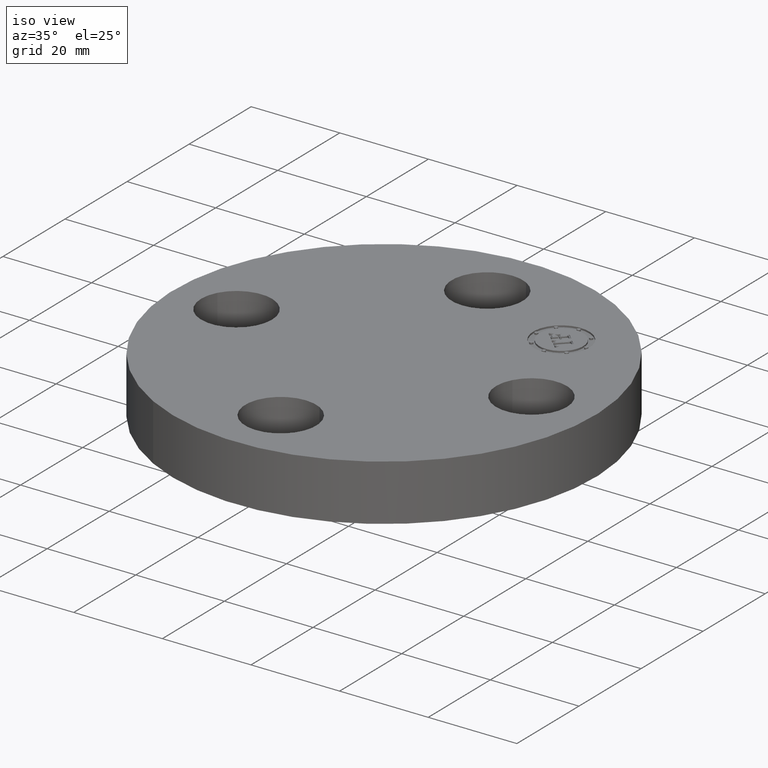
[diagram: clean part render]
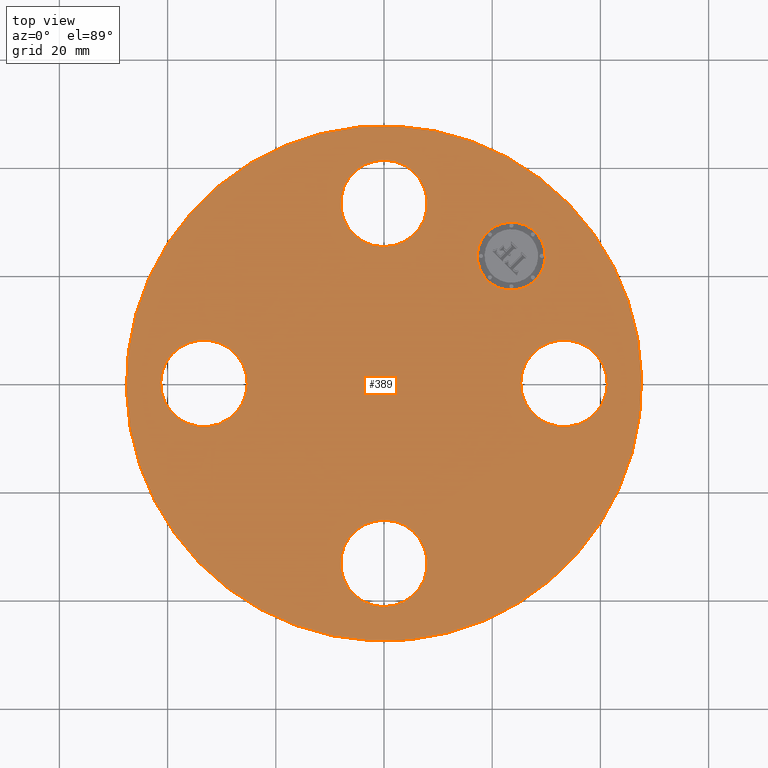
[diagram: tour spotlight — one face highlighted and labeled with its STEP entity id]
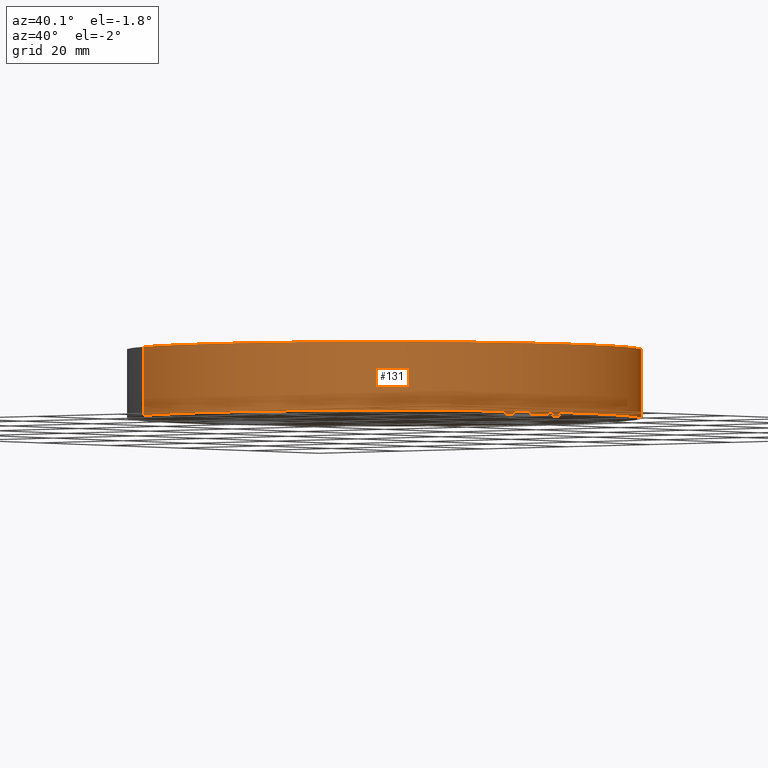
[diagram: tour spotlight — one face highlighted and labeled with its STEP entity id]
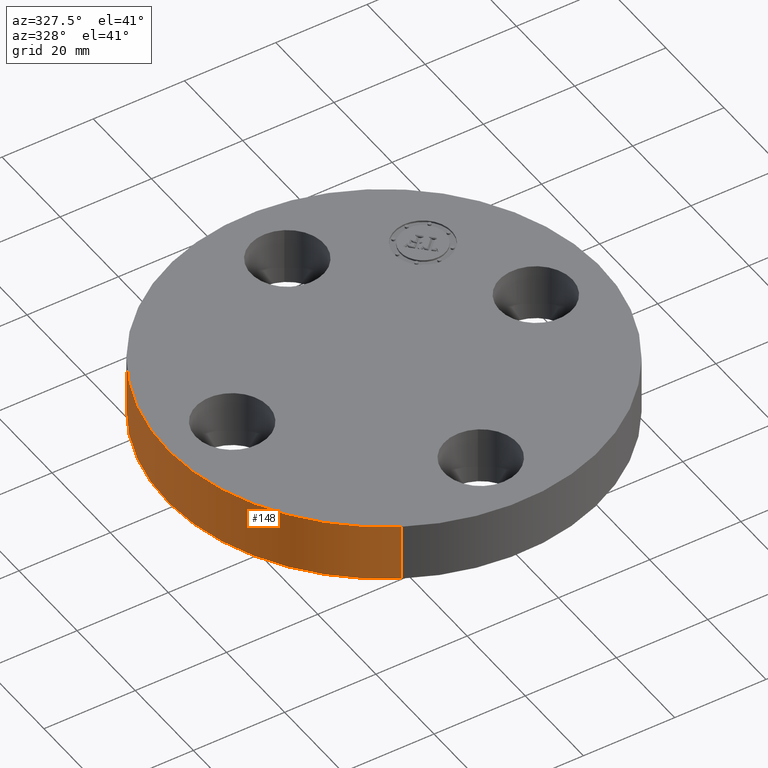
[diagram: tour spotlight — one face highlighted and labeled with its STEP entity id]
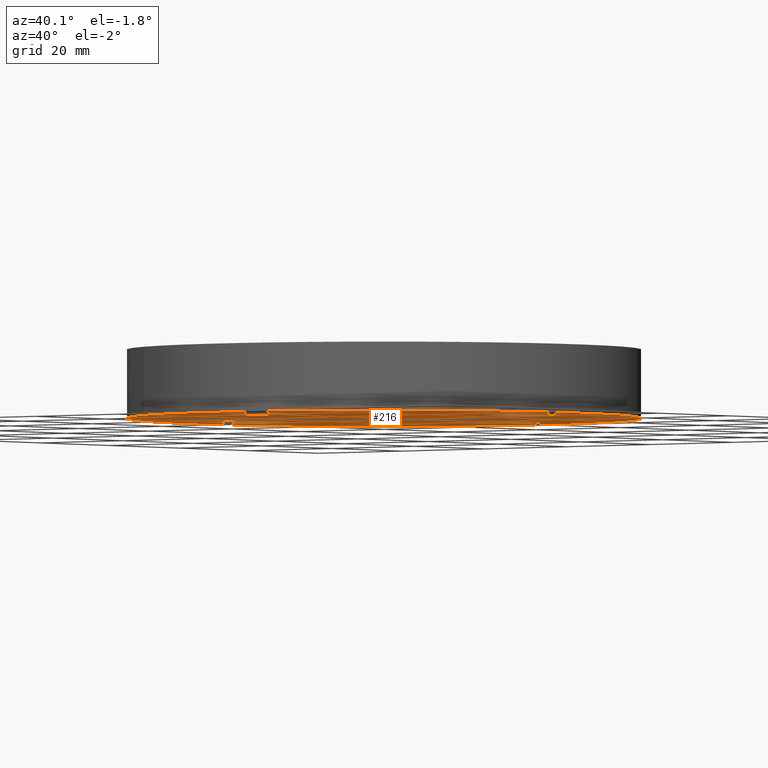
[diagram: tour spotlight — one face highlighted and labeled with its STEP entity id]
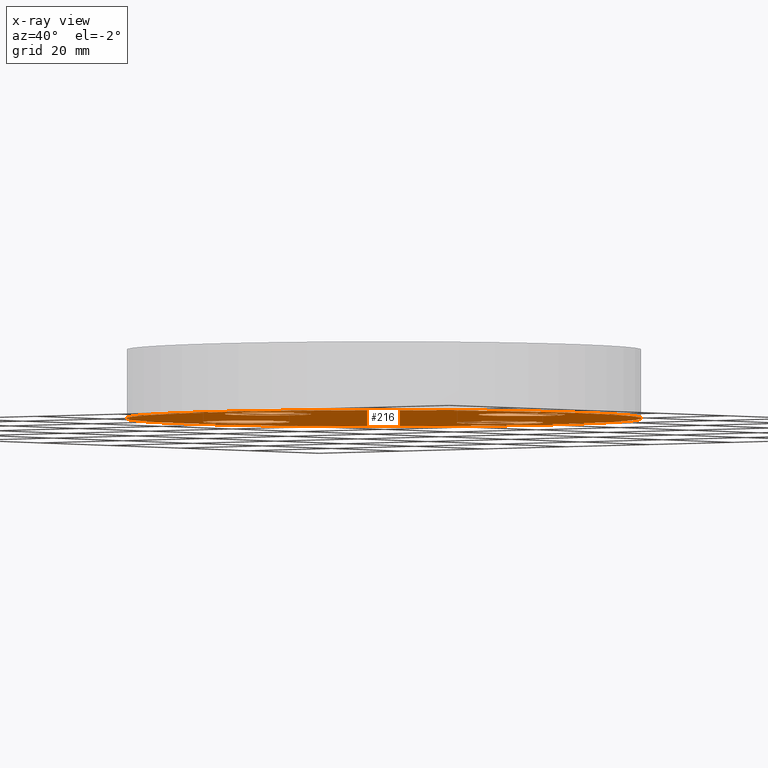
[diagram: x-ray of the same camera — body ghosted, this tour face saturated]
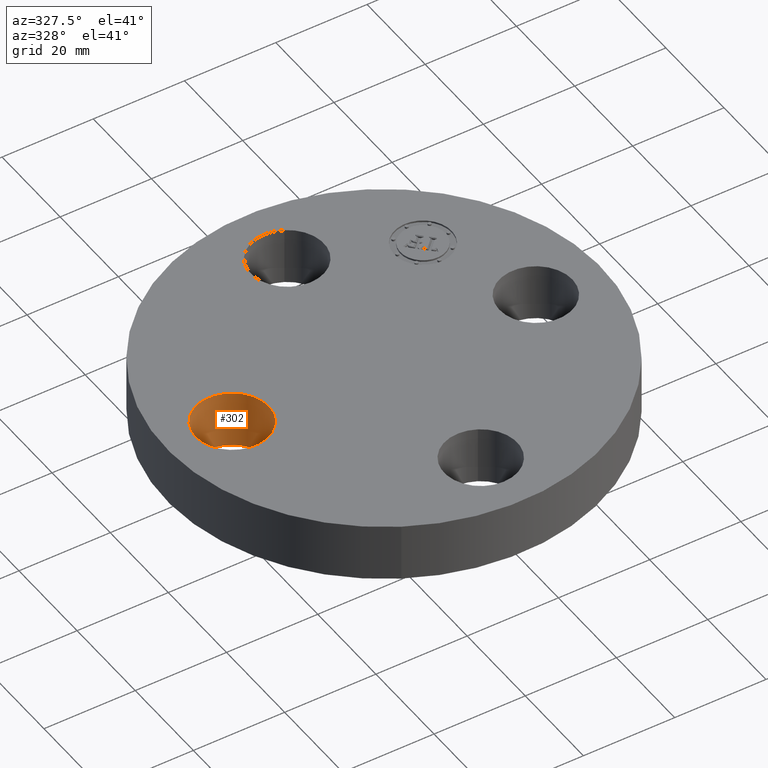
[diagram: tour spotlight — one face highlighted and labeled with its STEP entity id]
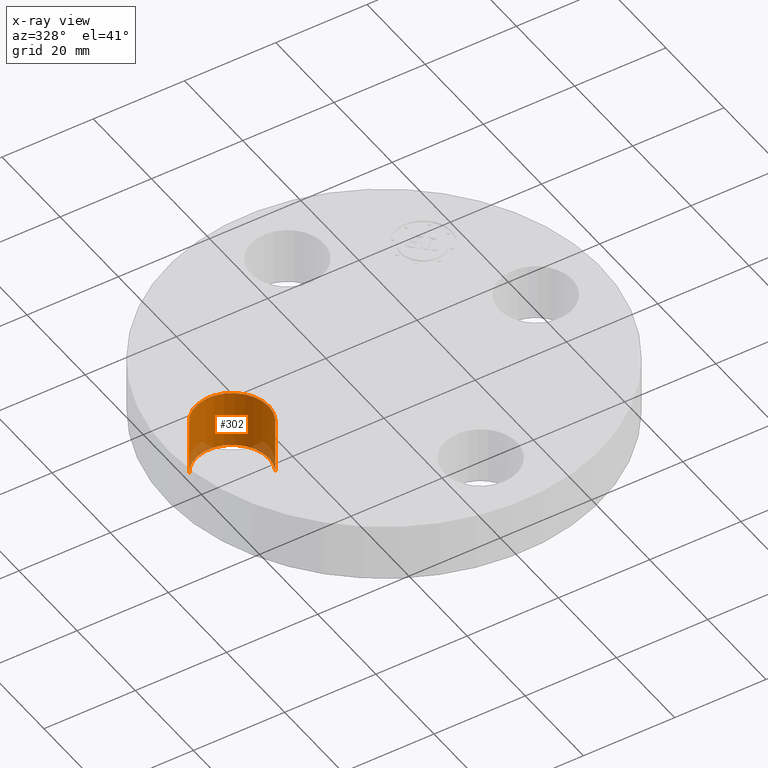
[diagram: x-ray of the same camera — body ghosted, this tour face saturated]
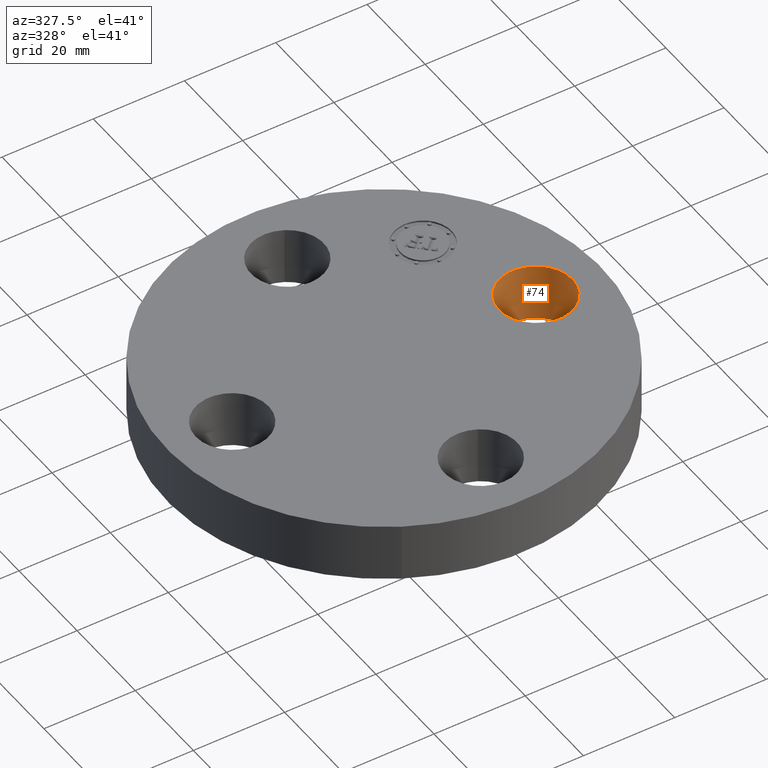
[diagram: tour spotlight — one face highlighted and labeled with its STEP entity id]
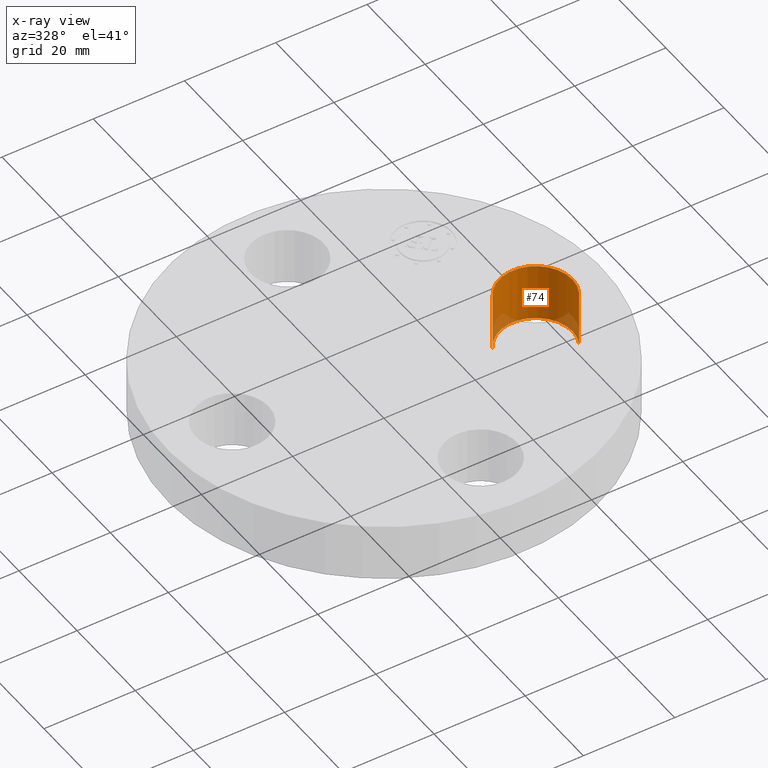
[diagram: x-ray of the same camera — body ghosted, this tour face saturated]
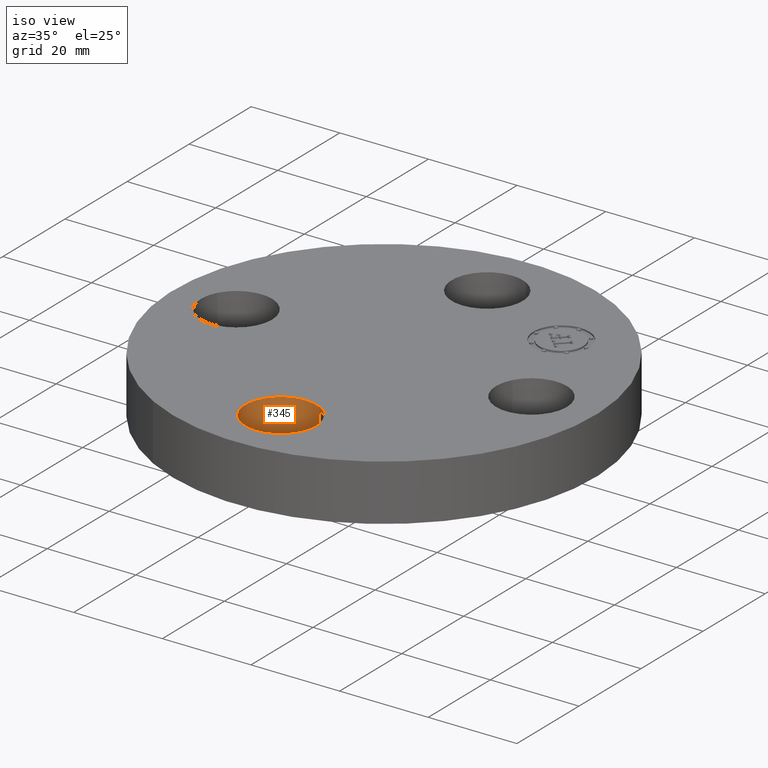
[diagram: tour spotlight — one face highlighted and labeled with its STEP entity id]
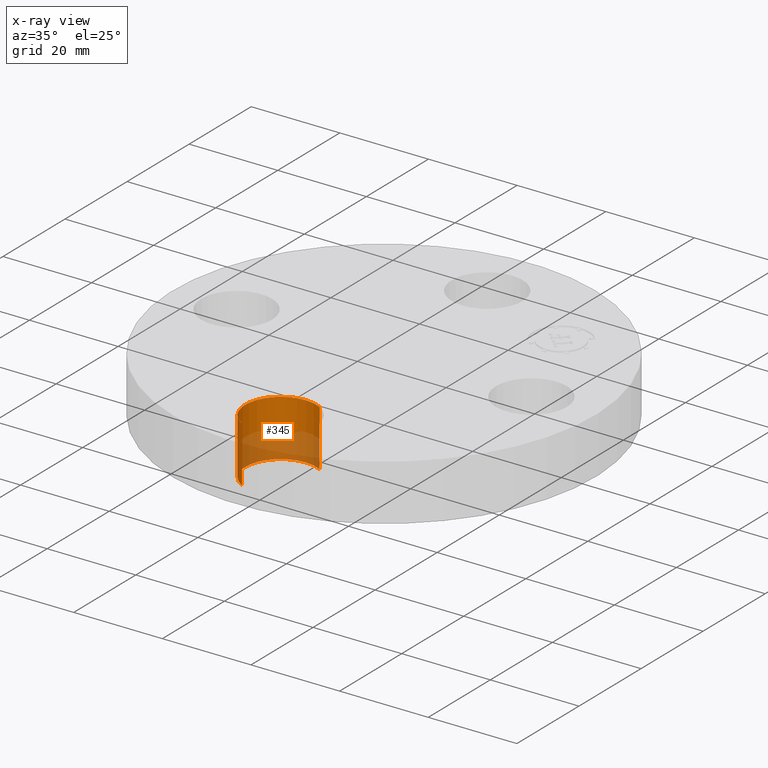
[diagram: x-ray of the same camera — body ghosted, this tour face saturated]
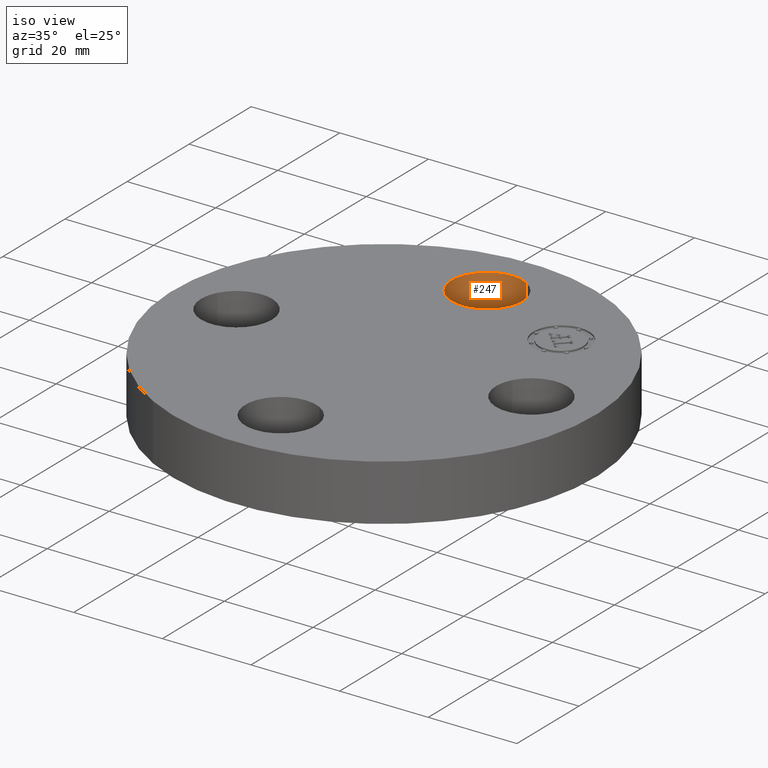
[diagram: tour spotlight — one face highlighted and labeled with its STEP entity id]
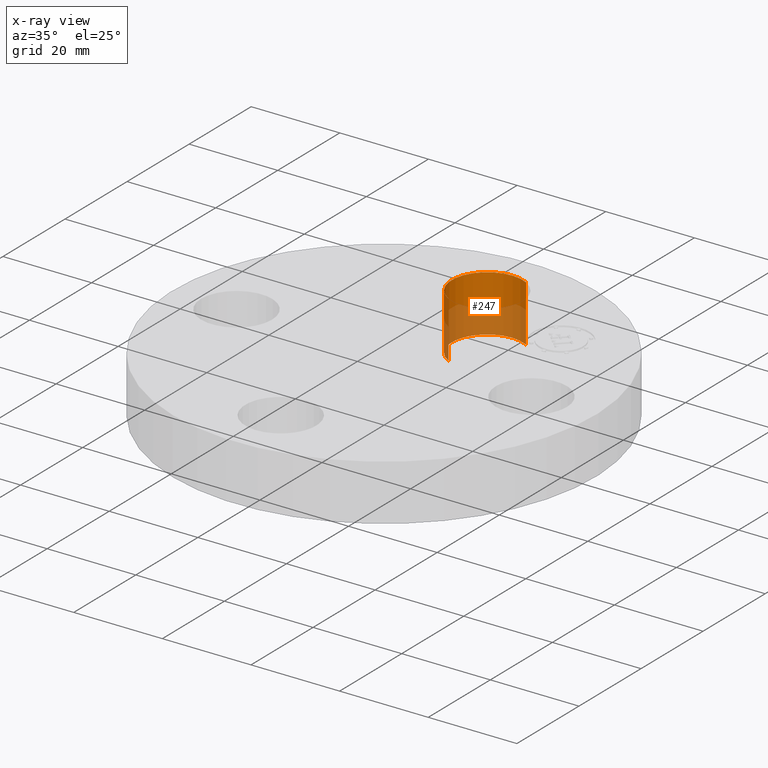
[diagram: x-ray of the same camera — body ghosted, this tour face saturated]
A machine part: a face-by-face anatomy tour. The part has 397 B-rep faces; the first image is the clean iso view, then the 8 largest visible faces are spotlighted one at a time (largest first), each with its STEP entity span.

Face 1 — top view, entity #389. In plain terms, the highlighted planar face has unit normal (0, 0, -1).
Definition (entity closure, byte-faithful):
#65=AXIS2_PLACEMENT_3D('Circle Axis2P3D',#63,#64,$) ;
#82=AXIS2_PLACEMENT_3D('Circle Axis2P3D',#80,#81,$) ;
#115=AXIS2_PLACEMENT_3D('Circle Axis2P3D',#113,#114,$) ;
#139=AXIS2_PLACEMENT_3D('Circle Axis2P3D',#137,#138,$) ;
#238=AXIS2_PLACEMENT_3D('Circle Axis2P3D',#236,#237,$) ;
#250=AXIS2_PLACEMENT_3D('Circle Axis2P3D',#248,#249,$) ;
#281=AXIS2_PLACEMENT_3D('Circle Axis2P3D',#279,#280,$) ;
#293=AXIS2_PLACEMENT_3D('Circle Axis2P3D',#291,#292,$) ;
#324=AXIS2_PLACEMENT_3D('Circle Axis2P3D',#322,#323,$) ;
#336=AXIS2_PLACEMENT_3D('Circle Axis2P3D',#334,#335,$) ;
#349=AXIS2_PLACEMENT_3D('Plane Axis2P3D',#346,#347,#348) ;
#373=AXIS2_PLACEMENT_3D('Circle Axis2P3D',#371,#372,$) ;
#382=AXIS2_PLACEMENT_3D('Circle Axis2P3D',#380,#381,$) ;
#46=CARTESIAN_POINT('Vertex',(1.03356149301,0.151019044661,0.500000000002)) ;
#60=CARTESIAN_POINT('Vertex',(1.586438507,-0.151019044661,0.500000000002)) ;
#63=CARTESIAN_POINT('Axis2P3D Location',(1.31000000001,0.,0.500000000002)) ;
#80=CARTESIAN_POINT('Axis2P3D Location',(1.31000000001,0.,0.500000000002)) ;
#110=CARTESIAN_POINT('Vertex',(0.898922884886,1.64546730355,0.500000000002)) ;
#113=CARTESIAN_POINT('Axis2P3D Location',(0.,0.,0.500000000002)) ;
#117=CARTESIAN_POINT('Vertex',(-0.898922884886,-1.64546730355,0.500000000002)) ;
#137=CARTESIAN_POINT('Axis2P3D Location',(0.,0.,0.500000000002)) ;
#226=CARTESIAN_POINT('Vertex',(-0.151019044661,1.03356149301,0.500000000002)) ;
#233=CARTESIAN_POINT('Vertex',(0.151019044661,1.586438507,0.500000000002)) ;
#236=CARTESIAN_POINT('Axis2P3D Location',(-2.40643096033E-016,1.31000000001,0.500000000002)) ;
#248=CARTESIAN_POINT('Axis2P3D Location',(-2.40643096033E-016,1.31000000001,0.500000000002)) ;
#269=CARTESIAN_POINT('Vertex',(-1.03356149301,-0.151019044661,0.500000000002)) ;
#276=CARTESIAN_POINT('Vertex',(-1.586438507,0.151019044661,0.500000000002)) ;
#279=CARTESIAN_POINT('Axis2P3D Location',(-1.31000000001,-1.60428730689E-016,0.500000000002)) ;
#291=CARTESIAN_POINT('Axis2P3D Location',(-1.31000000001,-1.60428730689E-016,0.500000000002)) ;
#312=CARTESIAN_POINT('Vertex',(0.151019044661,-1.03356149301,0.500000000002)) ;
#319=CARTESIAN_POINT('Vertex',(-0.151019044661,-1.586438507,0.500000000002)) ;
#322=CARTESIAN_POINT('Axis2P3D Location',(-1.99526869207E-016,-1.31000000001,0.500000000002)) ;
#334=CARTESIAN_POINT('Axis2P3D Location',(-1.99526869207E-016,-1.31000000001,0.500000000002)) ;
#346=CARTESIAN_POINT('Axis2P3D Location',(0.,1.87500000001,0.500000000002)) ;
#371=CARTESIAN_POINT('Axis2P3D Location',(0.926309883358,0.926309883358,0.500000000002)) ;
#375=CARTESIAN_POINT('Vertex',(0.751300955014,1.1013188117,0.500000000002)) ;
#377=CARTESIAN_POINT('Vertex',(1.1013188117,0.751300955014,0.500000000002)) ;
#380=CARTESIAN_POINT('Axis2P3D Location',(0.926309883358,0.926309883358,0.500000000002)) ;
#64=DIRECTION('Axis2P3D Direction',(0.,-0.,-0.0393700787402)) ;
#81=DIRECTION('Axis2P3D Direction',(0.,-0.,-0.0393700787402)) ;
#114=DIRECTION('Axis2P3D Direction',(0.,0.,-0.0393700787402)) ;
#138=DIRECTION('Axis2P3D Direction',(0.,0.,-0.0393700787402)) ;
#237=DIRECTION('Axis2P3D Direction',(0.,0.,-0.0393700787402)) ;
#249=DIRECTION('Axis2P3D Direction',(0.,0.,-0.0393700787402)) ;
#280=DIRECTION('Axis2P3D Direction',(-0.,0.,-0.0393700787402)) ;
#292=DIRECTION('Axis2P3D Direction',(-0.,0.,-0.0393700787402)) ;
#323=DIRECTION('Axis2P3D Direction',(0.,-0.,-0.0393700787402)) ;
#335=DIRECTION('Axis2P3D Direction',(0.,-0.,-0.0393700787402)) ;
#347=DIRECTION('Axis2P3D Direction',(0.,0.,-0.0393700787402)) ;
#348=DIRECTION('Axis2P3D XDirection',(0.0393700787402,0.,0.)) ;
#372=DIRECTION('Axis2P3D Direction',(0.,0.,-0.0393700787402)) ;
#381=DIRECTION('Axis2P3D Direction',(0.,0.,-0.0393700787402)) ;
#352=ORIENTED_EDGE('',*,*,#119,.F.) ;
#353=ORIENTED_EDGE('',*,*,#141,.F.) ;
#356=ORIENTED_EDGE('',*,*,#67,.T.) ;
#357=ORIENTED_EDGE('',*,*,#84,.T.) ;
#360=ORIENTED_EDGE('',*,*,#338,.T.) ;
#361=ORIENTED_EDGE('',*,*,#326,.T.) ;
#364=ORIENTED_EDGE('',*,*,#295,.T.) ;
#365=ORIENTED_EDGE('',*,*,#283,.T.) ;
#368=ORIENTED_EDGE('',*,*,#252,.T.) ;
#369=ORIENTED_EDGE('',*,*,#240,.T.) ;
#386=ORIENTED_EDGE('',*,*,#379,.T.) ;
#387=ORIENTED_EDGE('',*,*,#384,.T.) ;
#358=FACE_BOUND('',#355,.T.) ;
#362=FACE_BOUND('',#359,.T.) ;
#366=FACE_BOUND('',#363,.T.) ;
#370=FACE_BOUND('',#367,.T.) ;
#388=FACE_BOUND('',#385,.T.) ;
#389=ADVANCED_FACE('PartBody',(#354,#358,#362,#366,#370,#388),#350,.F.) ;
#66=CIRCLE('generated circle',#65,0.315000000001) ;
#83=CIRCLE('generated circle',#82,0.315000000001) ;
#116=CIRCLE('generated circle',#115,1.87500000001) ;
#140=CIRCLE('generated circle',#139,1.87500000001) ;
#239=CIRCLE('generated circle',#238,0.315000000001) ;
#251=CIRCLE('generated circle',#250,0.315000000001) ;
#282=CIRCLE('generated circle',#281,0.315000000001) ;
#294=CIRCLE('generated circle',#293,0.315000000001) ;
#325=CIRCLE('generated circle',#324,0.315000000001) ;
#337=CIRCLE('generated circle',#336,0.315000000001) ;
#374=CIRCLE('generated circle',#373,0.247500000001) ;
#383=CIRCLE('generated circle',#382,0.247500000001) ;
#67=EDGE_CURVE('',#47,#61,#66,.T.) ;
#84=EDGE_CURVE('',#61,#47,#83,.T.) ;
#119=EDGE_CURVE('',#111,#118,#116,.T.) ;
#141=EDGE_CURVE('',#118,#111,#140,.T.) ;
#240=EDGE_CURVE('',#227,#234,#239,.T.) ;
#252=EDGE_CURVE('',#234,#227,#251,.T.) ;
#283=EDGE_CURVE('',#270,#277,#282,.T.) ;
#295=EDGE_CURVE('',#277,#270,#294,.T.) ;
#326=EDGE_CURVE('',#313,#320,#325,.T.) ;
#338=EDGE_CURVE('',#320,#313,#337,.T.) ;
#379=EDGE_CURVE('',#376,#378,#374,.T.) ;
#384=EDGE_CURVE('',#378,#376,#383,.T.) ;
#351=EDGE_LOOP('',(#352,#353)) ;
#355=EDGE_LOOP('',(#356,#357)) ;
#359=EDGE_LOOP('',(#360,#361)) ;
#363=EDGE_LOOP('',(#364,#365)) ;
#367=EDGE_LOOP('',(#368,#369)) ;
#385=EDGE_LOOP('',(#386,#387)) ;
#354=FACE_OUTER_BOUND('',#351,.T.) ;
#350=PLANE('',#349) ;
#47=VERTEX_POINT('',#46) ;
#61=VERTEX_POINT('',#60) ;
#111=VERTEX_POINT('',#110) ;
#118=VERTEX_POINT('',#117) ;
#227=VERTEX_POINT('',#226) ;
#234=VERTEX_POINT('',#233) ;
#270=VERTEX_POINT('',#269) ;
#277=VERTEX_POINT('',#276) ;
#313=VERTEX_POINT('',#312) ;
#320=VERTEX_POINT('',#319) ;
#376=VERTEX_POINT('',#375) ;
#378=VERTEX_POINT('',#377) ;

Face 2 — auxiliary view, entity #131. In plain terms, the highlighted cylindrical surface (partial cylindrical patch) has radius 47.625 mm, axis along (0, 0, -1).
Definition (entity closure, byte-faithful):
#95=AXIS2_PLACEMENT_3D('Cylinder Axis2P3D',#92,#93,#94) ;
#99=AXIS2_PLACEMENT_3D('Circle Axis2P3D',#97,#98,$) ;
#115=AXIS2_PLACEMENT_3D('Circle Axis2P3D',#113,#114,$) ;
#92=CARTESIAN_POINT('Axis2P3D Location',(0.,0.,0.250000000001)) ;
#97=CARTESIAN_POINT('Axis2P3D Location',(0.,0.,1.04902962957E-016)) ;
#101=CARTESIAN_POINT('Vertex',(0.898922884886,1.64546730355,6.99353086378E-017)) ;
#103=CARTESIAN_POINT('Vertex',(-0.898922884886,-1.64546730355,6.99353086378E-017)) ;
#106=CARTESIAN_POINT('Line Origine',(0.898922884886,1.64546730355,0.250000000001)) ;
#110=CARTESIAN_POINT('Vertex',(0.898922884886,1.64546730355,0.500000000002)) ;
#113=CARTESIAN_POINT('Axis2P3D Location',(0.,0.,0.500000000002)) ;
#117=CARTESIAN_POINT('Vertex',(-0.898922884886,-1.64546730355,0.500000000002)) ;
#120=CARTESIAN_POINT('Line Origine',(-0.898922884886,-1.64546730355,0.250000000001)) ;
#93=DIRECTION('Axis2P3D Direction',(0.,0.,-0.0393700787402)) ;
#94=DIRECTION('Axis2P3D XDirection',(-0.0188750212049,-0.0345504945626,0.)) ;
#98=DIRECTION('Axis2P3D Direction',(0.,0.,-0.0393700787402)) ;
#107=DIRECTION('Vector Direction',(0.,0.,-0.0393700787402)) ;
#114=DIRECTION('Axis2P3D Direction',(0.,0.,-0.0393700787402)) ;
#121=DIRECTION('Vector Direction',(0.,0.,-0.0393700787402)) ;
#108=VECTOR('Line Direction',#107,0.0393700787402) ;
#122=VECTOR('Line Direction',#121,0.0393700787402) ;
#126=ORIENTED_EDGE('',*,*,#105,.F.) ;
#127=ORIENTED_EDGE('',*,*,#112,.T.) ;
#128=ORIENTED_EDGE('',*,*,#119,.T.) ;
#129=ORIENTED_EDGE('',*,*,#124,.F.) ;
#131=ADVANCED_FACE('PartBody',(#130),#96,.T.) ;
#100=CIRCLE('generated circle',#99,1.87500000001) ;
#116=CIRCLE('generated circle',#115,1.87500000001) ;
#96=CYLINDRICAL_SURFACE('generated cylinder',#95,1.87500000001) ;
#105=EDGE_CURVE('',#102,#104,#100,.T.) ;
#112=EDGE_CURVE('',#102,#111,#109,.F.) ;
#119=EDGE_CURVE('',#111,#118,#116,.T.) ;
#124=EDGE_CURVE('',#104,#118,#123,.F.) ;
#125=EDGE_LOOP('',(#126,#127,#128,#129)) ;
#130=FACE_OUTER_BOUND('',#125,.T.) ;
#109=LINE('Line',#106,#108) ;
#123=LINE('Line',#120,#122) ;
#102=VERTEX_POINT('',#101) ;
#104=VERTEX_POINT('',#103) ;
#111=VERTEX_POINT('',#110) ;
#118=VERTEX_POINT('',#117) ;

Face 3 — auxiliary view, entity #148. In plain terms, the highlighted cylindrical surface (partial cylindrical patch) has radius 47.625 mm, axis along (0, 0, -1).
Definition (entity closure, byte-faithful):
#95=AXIS2_PLACEMENT_3D('Cylinder Axis2P3D',#92,#93,#94) ;
#134=AXIS2_PLACEMENT_3D('Circle Axis2P3D',#132,#133,$) ;
#139=AXIS2_PLACEMENT_3D('Circle Axis2P3D',#137,#138,$) ;
#92=CARTESIAN_POINT('Axis2P3D Location',(0.,0.,0.250000000001)) ;
#101=CARTESIAN_POINT('Vertex',(0.898922884886,1.64546730355,6.99353086378E-017)) ;
#103=CARTESIAN_POINT('Vertex',(-0.898922884886,-1.64546730355,6.99353086378E-017)) ;
#106=CARTESIAN_POINT('Line Origine',(0.898922884886,1.64546730355,0.250000000001)) ;
#110=CARTESIAN_POINT('Vertex',(0.898922884886,1.64546730355,0.500000000002)) ;
#117=CARTESIAN_POINT('Vertex',(-0.898922884886,-1.64546730355,0.500000000002)) ;
#120=CARTESIAN_POINT('Line Origine',(-0.898922884886,-1.64546730355,0.250000000001)) ;
#132=CARTESIAN_POINT('Axis2P3D Location',(0.,0.,1.04902962957E-016)) ;
#137=CARTESIAN_POINT('Axis2P3D Location',(0.,0.,0.500000000002)) ;
#93=DIRECTION('Axis2P3D Direction',(0.,0.,-0.0393700787402)) ;
#94=DIRECTION('Axis2P3D XDirection',(-0.0188750212049,-0.0345504945626,0.)) ;
#107=DIRECTION('Vector Direction',(0.,0.,-0.0393700787402)) ;
#121=DIRECTION('Vector Direction',(0.,0.,-0.0393700787402)) ;
#133=DIRECTION('Axis2P3D Direction',(0.,0.,-0.0393700787402)) ;
#138=DIRECTION('Axis2P3D Direction',(0.,0.,-0.0393700787402)) ;
#108=VECTOR('Line Direction',#107,0.0393700787402) ;
#122=VECTOR('Line Direction',#121,0.0393700787402) ;
#143=ORIENTED_EDGE('',*,*,#136,.F.) ;
#144=ORIENTED_EDGE('',*,*,#124,.T.) ;
#145=ORIENTED_EDGE('',*,*,#141,.T.) ;
#146=ORIENTED_EDGE('',*,*,#112,.F.) ;
#148=ADVANCED_FACE('PartBody',(#147),#96,.T.) ;
#135=CIRCLE('generated circle',#134,1.87500000001) ;
#140=CIRCLE('generated circle',#139,1.87500000001) ;
#96=CYLINDRICAL_SURFACE('generated cylinder',#95,1.87500000001) ;
#112=EDGE_CURVE('',#102,#111,#109,.F.) ;
#124=EDGE_CURVE('',#104,#118,#123,.F.) ;
#136=EDGE_CURVE('',#104,#102,#135,.T.) ;
#141=EDGE_CURVE('',#118,#111,#140,.T.) ;
#142=EDGE_LOOP('',(#143,#144,#145,#146)) ;
#147=FACE_OUTER_BOUND('',#142,.T.) ;
#109=LINE('Line',#106,#108) ;
#123=LINE('Line',#120,#122) ;
#102=VERTEX_POINT('',#101) ;
#104=VERTEX_POINT('',#103) ;
#111=VERTEX_POINT('',#110) ;
#118=VERTEX_POINT('',#117) ;

Face 4 — auxiliary view, entity #216. An x-ray twin of the same camera follows (body ghosted, this face saturated) — the face is partly hidden behind the body. In plain terms, the highlighted planar face has unit normal (0, 0, -1).
Definition (entity closure, byte-faithful):
#51=AXIS2_PLACEMENT_3D('Circle Axis2P3D',#49,#50,$) ;
#77=AXIS2_PLACEMENT_3D('Circle Axis2P3D',#75,#76,$) ;
#99=AXIS2_PLACEMENT_3D('Circle Axis2P3D',#97,#98,$) ;
#134=AXIS2_PLACEMENT_3D('Circle Axis2P3D',#132,#133,$) ;
#152=AXIS2_PLACEMENT_3D('Plane Axis2P3D',#149,#150,#151) ;
#164=AXIS2_PLACEMENT_3D('Circle Axis2P3D',#162,#163,$) ;
#173=AXIS2_PLACEMENT_3D('Circle Axis2P3D',#171,#172,$) ;
#182=AXIS2_PLACEMENT_3D('Circle Axis2P3D',#180,#181,$) ;
#191=AXIS2_PLACEMENT_3D('Circle Axis2P3D',#189,#190,$) ;
#200=AXIS2_PLACEMENT_3D('Circle Axis2P3D',#198,#199,$) ;
#209=AXIS2_PLACEMENT_3D('Circle Axis2P3D',#207,#208,$) ;
#44=CARTESIAN_POINT('Vertex',(1.03356149301,0.151019044661,0.)) ;
#49=CARTESIAN_POINT('Axis2P3D Location',(1.31000000001,0.,0.)) ;
#53=CARTESIAN_POINT('Vertex',(1.586438507,-0.151019044661,0.)) ;
#75=CARTESIAN_POINT('Axis2P3D Location',(1.31000000001,0.,0.)) ;
#97=CARTESIAN_POINT('Axis2P3D Location',(0.,0.,1.04902962957E-016)) ;
#101=CARTESIAN_POINT('Vertex',(0.898922884886,1.64546730355,6.99353086378E-017)) ;
#103=CARTESIAN_POINT('Vertex',(-0.898922884886,-1.64546730355,6.99353086378E-017)) ;
#132=CARTESIAN_POINT('Axis2P3D Location',(0.,0.,1.04902962957E-016)) ;
#149=CARTESIAN_POINT('Axis2P3D Location',(0.,0.,0.)) ;
#162=CARTESIAN_POINT('Axis2P3D Location',(-1.04902962957E-016,-1.31000000001,0.)) ;
#166=CARTESIAN_POINT('Vertex',(0.151019044661,-1.03356149301,0.)) ;
#168=CARTESIAN_POINT('Vertex',(-0.151019044661,-1.586438507,0.)) ;
#171=CARTESIAN_POINT('Axis2P3D Location',(-1.74838271595E-016,-1.31000000001,0.)) ;
#180=CARTESIAN_POINT('Axis2P3D Location',(-1.31000000001,-1.74838271595E-016,0.)) ;
#184=CARTESIAN_POINT('Vertex',(-1.03356149301,-0.151019044661,0.)) ;
#186=CARTESIAN_POINT('Vertex',(-1.586438507,0.151019044661,0.)) ;
#189=CARTESIAN_POINT('Axis2P3D Location',(-1.31000000001,-3.49676543189E-017,0.)) ;
#198=CARTESIAN_POINT('Axis2P3D Location',(-3.1470888887E-016,1.31000000001,0.)) ;
#202=CARTESIAN_POINT('Vertex',(-0.151019044661,1.03356149301,0.)) ;
#204=CARTESIAN_POINT('Vertex',(0.151019044661,1.586438507,0.)) ;
#207=CARTESIAN_POINT('Axis2P3D Location',(-2.79741234551E-016,1.31000000001,0.)) ;
#50=DIRECTION('Axis2P3D Direction',(0.,-0.,-0.0393700787402)) ;
#76=DIRECTION('Axis2P3D Direction',(0.,-0.,-0.0393700787402)) ;
#98=DIRECTION('Axis2P3D Direction',(0.,0.,-0.0393700787402)) ;
#133=DIRECTION('Axis2P3D Direction',(0.,0.,-0.0393700787402)) ;
#150=DIRECTION('Axis2P3D Direction',(0.,0.,-0.0393700787402)) ;
#151=DIRECTION('Axis2P3D XDirection',(0.0393700787402,0.,0.)) ;
#163=DIRECTION('Axis2P3D Direction',(0.,0.,-0.0393700787402)) ;
#172=DIRECTION('Axis2P3D Direction',(0.,0.,-0.0393700787402)) ;
#181=DIRECTION('Axis2P3D Direction',(0.,0.,-0.0393700787402)) ;
#190=DIRECTION('Axis2P3D Direction',(0.,0.,-0.0393700787402)) ;
#199=DIRECTION('Axis2P3D Direction',(0.,0.,-0.0393700787402)) ;
#208=DIRECTION('Axis2P3D Direction',(0.,0.,-0.0393700787402)) ;
#155=ORIENTED_EDGE('',*,*,#105,.T.) ;
#156=ORIENTED_EDGE('',*,*,#136,.T.) ;
#159=ORIENTED_EDGE('',*,*,#79,.F.) ;
#160=ORIENTED_EDGE('',*,*,#55,.F.) ;
#177=ORIENTED_EDGE('',*,*,#170,.F.) ;
#178=ORIENTED_EDGE('',*,*,#175,.F.) ;
#195=ORIENTED_EDGE('',*,*,#188,.F.) ;
#196=ORIENTED_EDGE('',*,*,#193,.F.) ;
#213=ORIENTED_EDGE('',*,*,#206,.F.) ;
#214=ORIENTED_EDGE('',*,*,#211,.F.) ;
#161=FACE_BOUND('',#158,.T.) ;
#179=FACE_BOUND('',#176,.T.) ;
#197=FACE_BOUND('',#194,.T.) ;
#215=FACE_BOUND('',#212,.T.) ;
#216=ADVANCED_FACE('PartBody',(#157,#161,#179,#197,#215),#153,.T.) ;
#52=CIRCLE('generated circle',#51,0.315000000001) ;
#78=CIRCLE('generated circle',#77,0.315000000001) ;
#100=CIRCLE('generated circle',#99,1.87500000001) ;
#135=CIRCLE('generated circle',#134,1.87500000001) ;
#165=CIRCLE('generated circle',#164,0.315000000001) ;
#174=CIRCLE('generated circle',#173,0.315000000001) ;
#183=CIRCLE('generated circle',#182,0.315000000001) ;
#192=CIRCLE('generated circle',#191,0.315000000001) ;
#201=CIRCLE('generated circle',#200,0.315000000001) ;
#210=CIRCLE('generated circle',#209,0.315000000001) ;
#55=EDGE_CURVE('',#45,#54,#52,.T.) ;
#79=EDGE_CURVE('',#54,#45,#78,.T.) ;
#105=EDGE_CURVE('',#102,#104,#100,.T.) ;
#136=EDGE_CURVE('',#104,#102,#135,.T.) ;
#170=EDGE_CURVE('',#167,#169,#165,.T.) ;
#175=EDGE_CURVE('',#169,#167,#174,.T.) ;
#188=EDGE_CURVE('',#185,#187,#183,.T.) ;
#193=EDGE_CURVE('',#187,#185,#192,.T.) ;
#206=EDGE_CURVE('',#203,#205,#201,.T.) ;
#211=EDGE_CURVE('',#205,#203,#210,.T.) ;
#154=EDGE_LOOP('',(#155,#156)) ;
#158=EDGE_LOOP('',(#159,#160)) ;
#176=EDGE_LOOP('',(#177,#178)) ;
#194=EDGE_LOOP('',(#195,#196)) ;
#212=EDGE_LOOP('',(#213,#214)) ;
#157=FACE_OUTER_BOUND('',#154,.T.) ;
#153=PLANE('',#152) ;
#45=VERTEX_POINT('',#44) ;
#54=VERTEX_POINT('',#53) ;
#102=VERTEX_POINT('',#101) ;
#104=VERTEX_POINT('',#103) ;
#167=VERTEX_POINT('',#166) ;
#169=VERTEX_POINT('',#168) ;
#185=VERTEX_POINT('',#184) ;
#187=VERTEX_POINT('',#186) ;
#203=VERTEX_POINT('',#202) ;
#205=VERTEX_POINT('',#204) ;

Face 5 — auxiliary view, entity #302. An x-ray twin of the same camera follows (body ghosted, this face saturated) — the face is partly hidden behind the body. In plain terms, the highlighted cylindrical surface (partial cylindrical patch) has radius 8.001 mm, axis along (-0, 0, -1).
Definition (entity closure, byte-faithful):
#191=AXIS2_PLACEMENT_3D('Circle Axis2P3D',#189,#190,$) ;
#263=AXIS2_PLACEMENT_3D('Cylinder Axis2P3D',#260,#261,#262) ;
#293=AXIS2_PLACEMENT_3D('Circle Axis2P3D',#291,#292,$) ;
#184=CARTESIAN_POINT('Vertex',(-1.03356149301,-0.151019044661,0.)) ;
#186=CARTESIAN_POINT('Vertex',(-1.586438507,0.151019044661,0.)) ;
#189=CARTESIAN_POINT('Axis2P3D Location',(-1.31000000001,-3.49676543189E-017,0.)) ;
#260=CARTESIAN_POINT('Axis2P3D Location',(-1.31000000001,-1.60428730689E-016,0.496062992128)) ;
#265=CARTESIAN_POINT('Line Origine',(-1.03356149301,-0.151019044661,0.250000000001)) ;
#269=CARTESIAN_POINT('Vertex',(-1.03356149301,-0.151019044661,0.500000000002)) ;
#272=CARTESIAN_POINT('Line Origine',(-1.586438507,0.151019044661,0.250000000001)) ;
#276=CARTESIAN_POINT('Vertex',(-1.586438507,0.151019044661,0.500000000002)) ;
#291=CARTESIAN_POINT('Axis2P3D Location',(-1.31000000001,-1.60428730689E-016,0.500000000002)) ;
#190=DIRECTION('Axis2P3D Direction',(0.,0.,-0.0393700787402)) ;
#261=DIRECTION('Axis2P3D Direction',(-0.,0.,-0.0393700787402)) ;
#262=DIRECTION('Axis2P3D XDirection',(-0.0345504945626,0.0188750212049,0.)) ;
#266=DIRECTION('Vector Direction',(0.,0.,-0.0393700787402)) ;
#273=DIRECTION('Vector Direction',(0.,0.,-0.0393700787402)) ;
#292=DIRECTION('Axis2P3D Direction',(-0.,0.,-0.0393700787402)) ;
#267=VECTOR('Line Direction',#266,0.0393700787402) ;
#274=VECTOR('Line Direction',#273,0.0393700787402) ;
#297=ORIENTED_EDGE('',*,*,#278,.F.) ;
#298=ORIENTED_EDGE('',*,*,#193,.T.) ;
#299=ORIENTED_EDGE('',*,*,#271,.T.) ;
#300=ORIENTED_EDGE('',*,*,#295,.F.) ;
#302=ADVANCED_FACE('PartBody',(#301),#264,.F.) ;
#192=CIRCLE('generated circle',#191,0.315000000001) ;
#294=CIRCLE('generated circle',#293,0.315000000001) ;
#264=CYLINDRICAL_SURFACE('generated cylinder',#263,0.315000000001) ;
#193=EDGE_CURVE('',#187,#185,#192,.T.) ;
#271=EDGE_CURVE('',#185,#270,#268,.F.) ;
#278=EDGE_CURVE('',#187,#277,#275,.F.) ;
#295=EDGE_CURVE('',#277,#270,#294,.T.) ;
#296=EDGE_LOOP('',(#297,#298,#299,#300)) ;
#301=FACE_OUTER_BOUND('',#296,.T.) ;
#268=LINE('Line',#265,#267) ;
#275=LINE('Line',#272,#274) ;
#185=VERTEX_POINT('',#184) ;
#187=VERTEX_POINT('',#186) ;
#270=VERTEX_POINT('',#269) ;
#277=VERTEX_POINT('',#276) ;

Face 6 — auxiliary view, entity #74. An x-ray twin of the same camera follows (body ghosted, this face saturated) — the face is partly hidden behind the body. In plain terms, the highlighted cylindrical surface (partial cylindrical patch) has radius 8.001 mm, axis along (0, -0, -1).
Definition (entity closure, byte-faithful):
#38=AXIS2_PLACEMENT_3D('Cylinder Axis2P3D',#35,#36,#37) ;
#51=AXIS2_PLACEMENT_3D('Circle Axis2P3D',#49,#50,$) ;
#65=AXIS2_PLACEMENT_3D('Circle Axis2P3D',#63,#64,$) ;
#35=CARTESIAN_POINT('Axis2P3D Location',(1.31000000001,0.,0.496062992128)) ;
#40=CARTESIAN_POINT('Line Origine',(1.03356149301,0.151019044661,0.250000000001)) ;
#44=CARTESIAN_POINT('Vertex',(1.03356149301,0.151019044661,0.)) ;
#46=CARTESIAN_POINT('Vertex',(1.03356149301,0.151019044661,0.500000000002)) ;
#49=CARTESIAN_POINT('Axis2P3D Location',(1.31000000001,0.,0.)) ;
#53=CARTESIAN_POINT('Vertex',(1.586438507,-0.151019044661,0.)) ;
#56=CARTESIAN_POINT('Line Origine',(1.586438507,-0.151019044661,0.250000000001)) ;
#60=CARTESIAN_POINT('Vertex',(1.586438507,-0.151019044661,0.500000000002)) ;
#63=CARTESIAN_POINT('Axis2P3D Location',(1.31000000001,0.,0.500000000002)) ;
#36=DIRECTION('Axis2P3D Direction',(0.,-0.,-0.0393700787402)) ;
#37=DIRECTION('Axis2P3D XDirection',(0.0345504945626,-0.0188750212049,0.)) ;
#41=DIRECTION('Vector Direction',(0.,0.,-0.0393700787402)) ;
#50=DIRECTION('Axis2P3D Direction',(0.,-0.,-0.0393700787402)) ;
#57=DIRECTION('Vector Direction',(0.,0.,-0.0393700787402)) ;
#64=DIRECTION('Axis2P3D Direction',(0.,-0.,-0.0393700787402)) ;
#42=VECTOR('Line Direction',#41,0.0393700787402) ;
#58=VECTOR('Line Direction',#57,0.0393700787402) ;
#69=ORIENTED_EDGE('',*,*,#48,.F.) ;
#70=ORIENTED_EDGE('',*,*,#55,.T.) ;
#71=ORIENTED_EDGE('',*,*,#62,.T.) ;
#72=ORIENTED_EDGE('',*,*,#67,.F.) ;
#74=ADVANCED_FACE('PartBody',(#73),#39,.F.) ;
#52=CIRCLE('generated circle',#51,0.315000000001) ;
#66=CIRCLE('generated circle',#65,0.315000000001) ;
#39=CYLINDRICAL_SURFACE('generated cylinder',#38,0.315000000001) ;
#48=EDGE_CURVE('',#45,#47,#43,.F.) ;
#55=EDGE_CURVE('',#45,#54,#52,.T.) ;
#62=EDGE_CURVE('',#54,#61,#59,.F.) ;
#67=EDGE_CURVE('',#47,#61,#66,.T.) ;
#68=EDGE_LOOP('',(#69,#70,#71,#72)) ;
#73=FACE_OUTER_BOUND('',#68,.T.) ;
#43=LINE('Line',#40,#42) ;
#59=LINE('Line',#56,#58) ;
#45=VERTEX_POINT('',#44) ;
#47=VERTEX_POINT('',#46) ;
#54=VERTEX_POINT('',#53) ;
#61=VERTEX_POINT('',#60) ;

Face 7 — iso view, entity #345. An x-ray twin of the same camera follows (body ghosted, this face saturated) — the face is partly hidden behind the body. In plain terms, the highlighted cylindrical surface (partial cylindrical patch) has radius 8.001 mm, axis along (0, -0, -1).
Definition (entity closure, byte-faithful):
#173=AXIS2_PLACEMENT_3D('Circle Axis2P3D',#171,#172,$) ;
#306=AXIS2_PLACEMENT_3D('Cylinder Axis2P3D',#303,#304,#305) ;
#336=AXIS2_PLACEMENT_3D('Circle Axis2P3D',#334,#335,$) ;
#166=CARTESIAN_POINT('Vertex',(0.151019044661,-1.03356149301,0.)) ;
#168=CARTESIAN_POINT('Vertex',(-0.151019044661,-1.586438507,0.)) ;
#171=CARTESIAN_POINT('Axis2P3D Location',(-1.74838271595E-016,-1.31000000001,0.)) ;
#303=CARTESIAN_POINT('Axis2P3D Location',(-1.99526869207E-016,-1.31000000001,0.496062992128)) ;
#308=CARTESIAN_POINT('Line Origine',(0.151019044661,-1.03356149301,0.250000000001)) ;
#312=CARTESIAN_POINT('Vertex',(0.151019044661,-1.03356149301,0.500000000002)) ;
#315=CARTESIAN_POINT('Line Origine',(-0.151019044661,-1.586438507,0.250000000001)) ;
#319=CARTESIAN_POINT('Vertex',(-0.151019044661,-1.586438507,0.500000000002)) ;
#334=CARTESIAN_POINT('Axis2P3D Location',(-1.99526869207E-016,-1.31000000001,0.500000000002)) ;
#172=DIRECTION('Axis2P3D Direction',(0.,0.,-0.0393700787402)) ;
#304=DIRECTION('Axis2P3D Direction',(0.,-0.,-0.0393700787402)) ;
#305=DIRECTION('Axis2P3D XDirection',(-0.0188750212049,-0.0345504945626,0.)) ;
#309=DIRECTION('Vector Direction',(0.,0.,-0.0393700787402)) ;
#316=DIRECTION('Vector Direction',(0.,0.,-0.0393700787402)) ;
#335=DIRECTION('Axis2P3D Direction',(0.,-0.,-0.0393700787402)) ;
#310=VECTOR('Line Direction',#309,0.0393700787402) ;
#317=VECTOR('Line Direction',#316,0.0393700787402) ;
#340=ORIENTED_EDGE('',*,*,#321,.F.) ;
#341=ORIENTED_EDGE('',*,*,#175,.T.) ;
#342=ORIENTED_EDGE('',*,*,#314,.T.) ;
#343=ORIENTED_EDGE('',*,*,#338,.F.) ;
#345=ADVANCED_FACE('PartBody',(#344),#307,.F.) ;
#174=CIRCLE('generated circle',#173,0.315000000001) ;
#337=CIRCLE('generated circle',#336,0.315000000001) ;
#307=CYLINDRICAL_SURFACE('generated cylinder',#306,0.315000000001) ;
#175=EDGE_CURVE('',#169,#167,#174,.T.) ;
#314=EDGE_CURVE('',#167,#313,#311,.F.) ;
#321=EDGE_CURVE('',#169,#320,#318,.F.) ;
#338=EDGE_CURVE('',#320,#313,#337,.T.) ;
#339=EDGE_LOOP('',(#340,#341,#342,#343)) ;
#344=FACE_OUTER_BOUND('',#339,.T.) ;
#311=LINE('Line',#308,#310) ;
#318=LINE('Line',#315,#317) ;
#167=VERTEX_POINT('',#166) ;
#169=VERTEX_POINT('',#168) ;
#313=VERTEX_POINT('',#312) ;
#320=VERTEX_POINT('',#319) ;

Face 8 — iso view, entity #247. An x-ray twin of the same camera follows (body ghosted, this face saturated) — the face is partly hidden behind the body. In plain terms, the highlighted cylindrical surface (partial cylindrical patch) has radius 8.001 mm, axis along (0, 0, -1).
Definition (entity closure, byte-faithful):
#200=AXIS2_PLACEMENT_3D('Circle Axis2P3D',#198,#199,$) ;
#220=AXIS2_PLACEMENT_3D('Cylinder Axis2P3D',#217,#218,#219) ;
#238=AXIS2_PLACEMENT_3D('Circle Axis2P3D',#236,#237,$) ;
#198=CARTESIAN_POINT('Axis2P3D Location',(-3.1470888887E-016,1.31000000001,0.)) ;
#202=CARTESIAN_POINT('Vertex',(-0.151019044661,1.03356149301,0.)) ;
#204=CARTESIAN_POINT('Vertex',(0.151019044661,1.586438507,0.)) ;
#217=CARTESIAN_POINT('Axis2P3D Location',(-2.40643096033E-016,1.31000000001,0.496062992128)) ;
#222=CARTESIAN_POINT('Line Origine',(-0.151019044661,1.03356149301,0.250000000001)) ;
#226=CARTESIAN_POINT('Vertex',(-0.151019044661,1.03356149301,0.500000000002)) ;
#229=CARTESIAN_POINT('Line Origine',(0.151019044661,1.586438507,0.250000000001)) ;
#233=CARTESIAN_POINT('Vertex',(0.151019044661,1.586438507,0.500000000002)) ;
#236=CARTESIAN_POINT('Axis2P3D Location',(-2.40643096033E-016,1.31000000001,0.500000000002)) ;
#199=DIRECTION('Axis2P3D Direction',(0.,0.,-0.0393700787402)) ;
#218=DIRECTION('Axis2P3D Direction',(0.,0.,-0.0393700787402)) ;
#219=DIRECTION('Axis2P3D XDirection',(0.0188750212049,0.0345504945626,0.)) ;
#223=DIRECTION('Vector Direction',(0.,0.,-0.0393700787402)) ;
#230=DIRECTION('Vector Direction',(0.,0.,-0.0393700787402)) ;
#237=DIRECTION('Axis2P3D Direction',(0.,0.,-0.0393700787402)) ;
#224=VECTOR('Line Direction',#223,0.0393700787402) ;
#231=VECTOR('Line Direction',#230,0.0393700787402) ;
#242=ORIENTED_EDGE('',*,*,#228,.F.) ;
#243=ORIENTED_EDGE('',*,*,#206,.T.) ;
#244=ORIENTED_EDGE('',*,*,#235,.T.) ;
#245=ORIENTED_EDGE('',*,*,#240,.F.) ;
#247=ADVANCED_FACE('PartBody',(#246),#221,.F.) ;
#201=CIRCLE('generated circle',#200,0.315000000001) ;
#239=CIRCLE('generated circle',#238,0.315000000001) ;
#221=CYLINDRICAL_SURFACE('generated cylinder',#220,0.315000000001) ;
#206=EDGE_CURVE('',#203,#205,#201,.T.) ;
#228=EDGE_CURVE('',#203,#227,#225,.F.) ;
#235=EDGE_CURVE('',#205,#234,#232,.F.) ;
#240=EDGE_CURVE('',#227,#234,#239,.T.) ;
#241=EDGE_LOOP('',(#242,#243,#244,#245)) ;
#246=FACE_OUTER_BOUND('',#241,.T.) ;
#225=LINE('Line',#222,#224) ;
#232=LINE('Line',#229,#231) ;
#203=VERTEX_POINT('',#202) ;
#205=VERTEX_POINT('',#204) ;
#227=VERTEX_POINT('',#226) ;
#234=VERTEX_POINT('',#233) ;